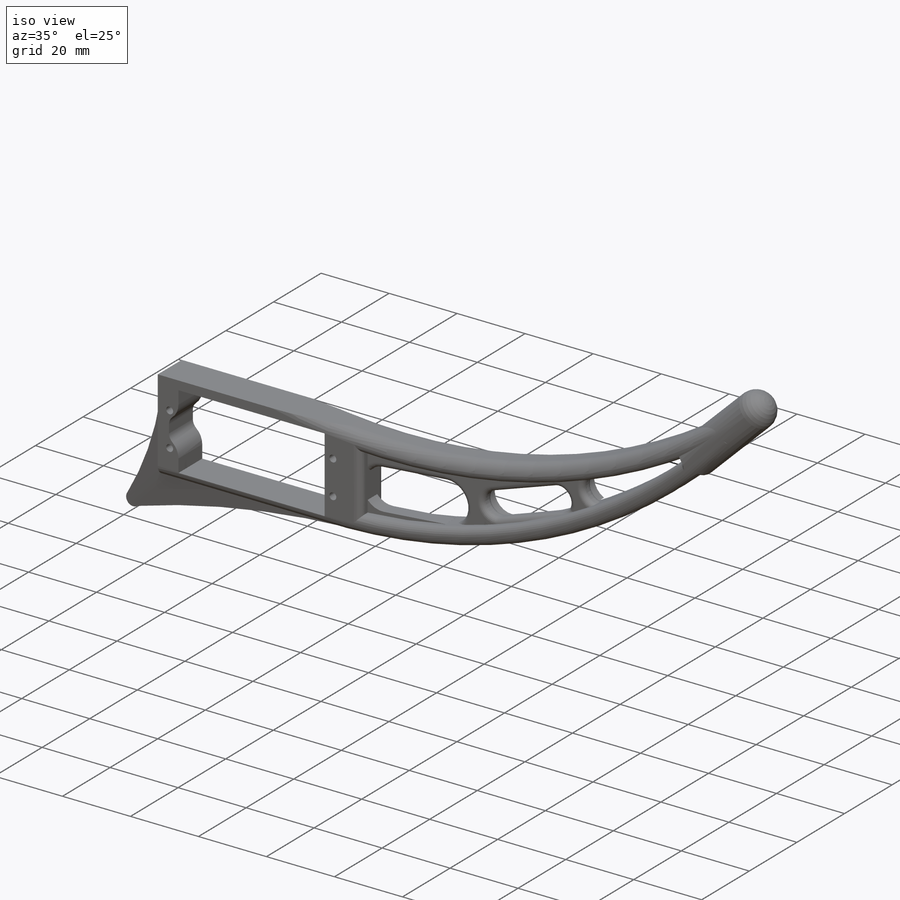
[diagram: iso view]
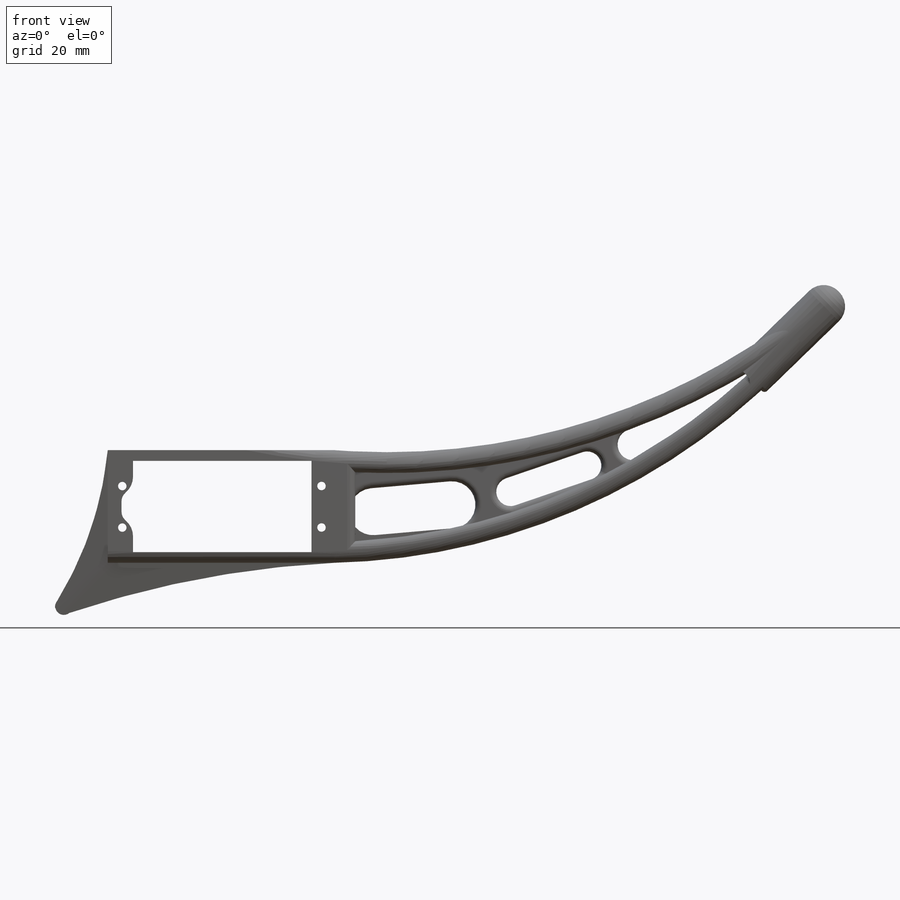
[diagram: front view]
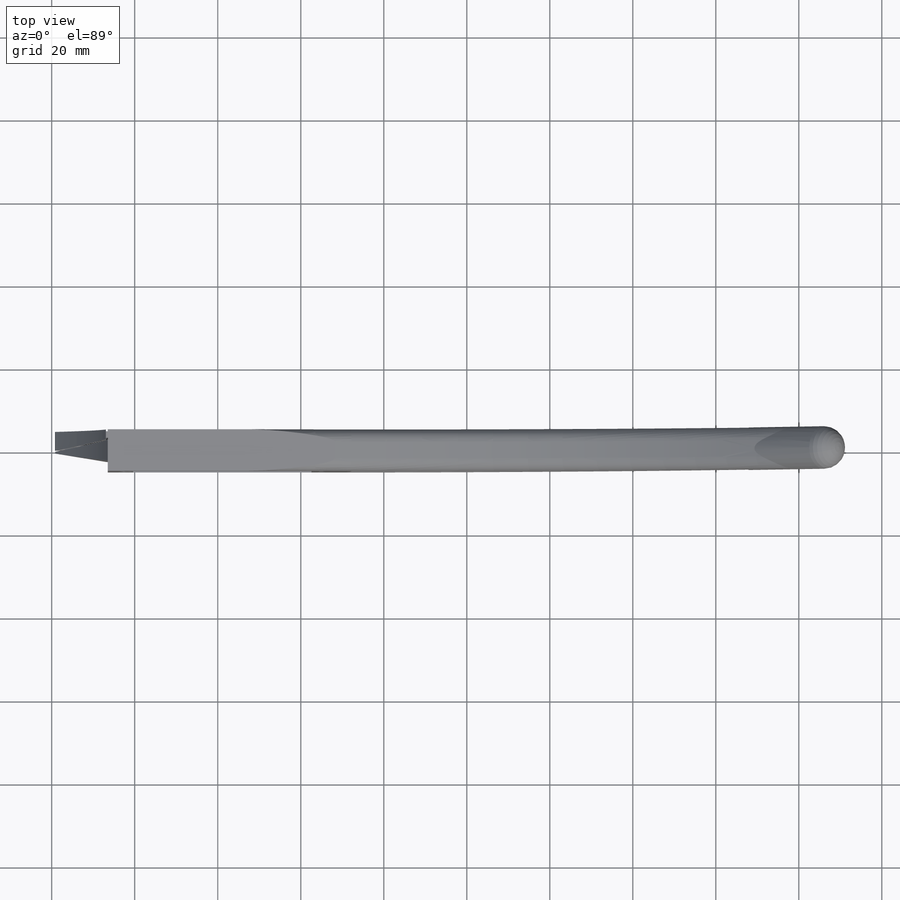
[diagram: top view]
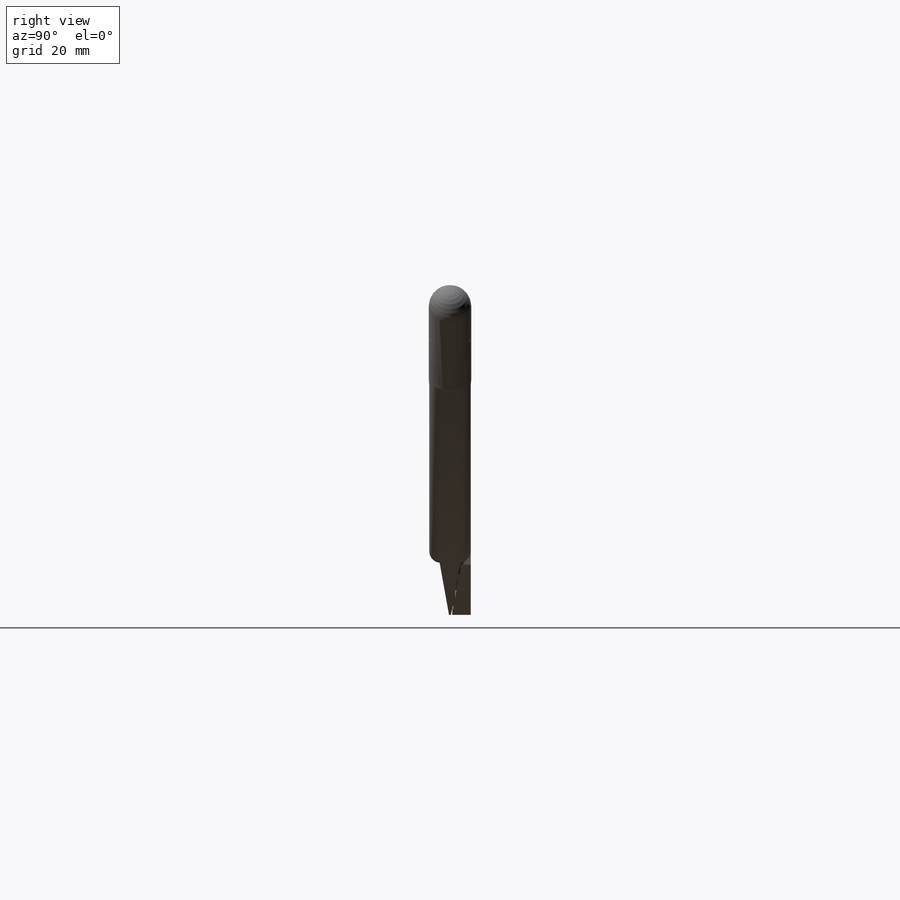
[diagram: right view]
SOLIDWORKS PART (.sldprt)
format: sldprt  version: not decoded by parser v0  size: 1,007,616 bytes
history: native  units: mm
features: sketch x16, fillet x9, extrude x8, cut_extrude x8, plane x4, material x1 (+10 scaffold rows collapsed)
feature tree (56):
  scaffold x10  (default folders/planes/origin — collapsed)
  material  "Material <sin especificar>"
  plane  "Alzado"
  plane  "Planta"
  plane  "Vista lateral"
  plane  "Plano4"  Offset=5mm
  sketch  "Croquis1"  dims[D1=43.0mm D2=22.0mm D3=~2.555556mm D4=~2.577042mm]
  extrude  "Base de comienzo"  Depth=10mm
  sketch  "Croquis2"  dims[D3=11.5mm D4=11.5mm D5=5.0mm D6=5.0mm D7=24.0mm D8=24.0mm D9=10.0mm D1=2.0 D2=2.0]
  cut_extrude  "Taladros Servo"  [1 undecoded]
  sketch  "Croquis3"
  cut_extrude  "Recorte Base"  Depth=10mm
  sketch  "Croquis4"  dims[c1.D1=100.0mm c1.D2=100.0mm c2.D1=0.0mm]
  extrude  "Base Pata"  Depth=10mm
  sketch  "Croquis5"  dims[D1=5.0mm]
  cut_extrude  "Rebaje frontal"  Depth=3mm
  sketch  "Croquis6"
  cut_extrude  "Rebaje Trasero"  Depth=3mm
  sketch  "Croquis7"
  extrude  "Base Cantonera"  Depth=30mm
  fillet  "Punta Cantonera"  Radius=5mm
  fillet  "Redondeo Pata 1"  Radius=3mm
  fillet  "Redondeo Pata 2"  Radius=2.8mm
  fillet  "Redondeo Cantonera"  Radius=1mm
  sketch  "Croquis9"
  cut_extrude  "Rebaje interior Pata"  [1 undecoded]
  fillet  "Redondeo rebaje 1"  Radius=2mm
  fillet  "Redondeo rebaje 2"  Radius=1.5mm
  fillet  "Redondeo rebaje 3"  Radius=1.5mm
  sketch  "Croquis10"  dims[c1.D1=~42.828399mm c2.D1=45.0deg]
  extrude  "Base Espolon"  Depth=5mm
  sketch  "Croquis11"
  cut_extrude  "Afilado espolon 1"  Depth=135mm
  sketch  "Croquis12"
  cut_extrude  "Afilado espolon 2"  Depth=45mm
  fillet  "Redondeo Aristas espolon"  Radius=10mm
  sketch  "Croquis13"  dims[D1=5.0mm]
  cut_extrude  "Caja Cable servo"  [1 undecoded]
  fillet  "Redondeo caja cable servo"  Radius=5mm
  sketch  "Croquis14"  dims[D1=1.0mm D2=1.0mm]
  extrude  "Soporte impresión 1"  Depth=0.25mm
  sketch  "Croquis15"
  extrude  "Soporte impresión 2"  Depth=0.25mm
  sketch  "Croquis16"
  extrude  "Soporte impresión 3"  Depth=0.25mm
  sketch  "Croquis17"  dims[D1=0.0mm D2=1.0mm]
  extrude  "Soporte impresión 4"  Depth=0.25mm
decode coverage: 30 of 41 modeling features carry decoded parameters
note: ~ marks probable driven/reference dimensions
note: 3 parameter values undecoded
summary: no parameter record found for 3 features
note: suppression state not decoded; provenance and decode notes live in map.json
